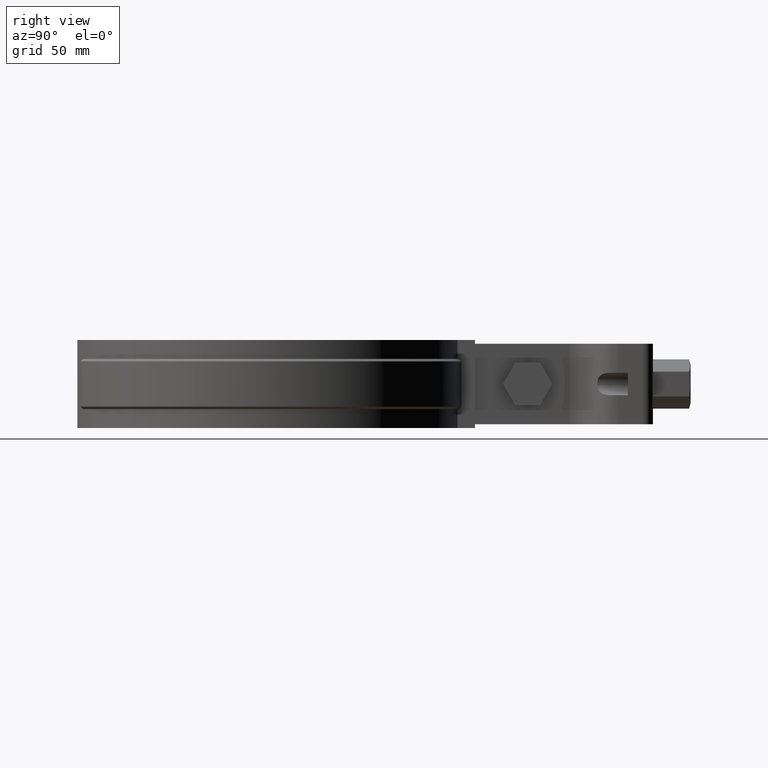
[diagram: clean part render]
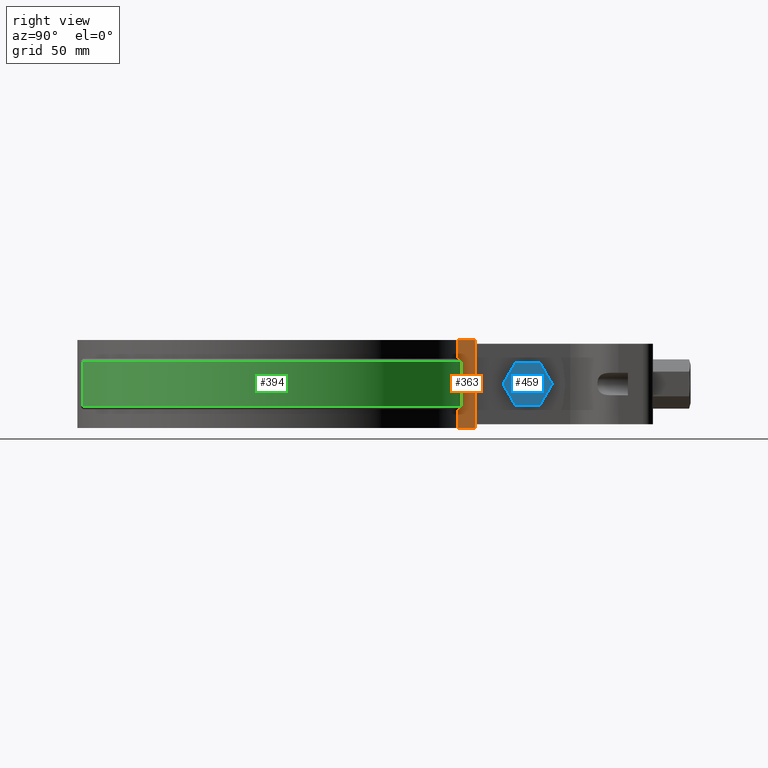
[diagram: same view with three faces highlighted in distinct colors, each labeled with its STEP entity id]
A machine part, right view with three faces highlighted in distinct colors.
Their STEP definitions:

[orange] entity #363 — the highlighted planar face has unit normal (1, -0, 0).
#363 = ADVANCED_FACE( '', ( #594 ), #595, .T. );
#594 = FACE_OUTER_BOUND( '', #1721, .T. );
#595 = PLANE( '', #1722 );
#1721 = EDGE_LOOP( '', ( #3563, #3564, #3565, #3566, #3567, #3568, #3569, #3570, #3571, #3572 ) );
#1722 = AXIS2_PLACEMENT_3D( '', #3573, #3574, #3575 );
#3563 = ORIENTED_EDGE( '', *, *, #5157, .F. );
#3564 = ORIENTED_EDGE( '', *, *, #5072, .T. );
#3565 = ORIENTED_EDGE( '', *, *, #5071, .T. );
#3566 = ORIENTED_EDGE( '', *, *, #5158, .F. );
#3567 = ORIENTED_EDGE( '', *, *, #5159, .T. );
#3568 = ORIENTED_EDGE( '', *, *, #5160, .T. );
#3569 = ORIENTED_EDGE( '', *, *, #5161, .F. );
#3570 = ORIENTED_EDGE( '', *, *, #5162, .F. );
#3571 = ORIENTED_EDGE( '', *, *, #5141, .F. );
#3572 = ORIENTED_EDGE( '', *, *, #5163, .T. );
#3573 = CARTESIAN_POINT( '', ( 8.39999999999999, 75.5343630409366, -33.5000000000000 ) );
#3574 = DIRECTION( '', ( 1.00000000000000, -6.67201336914157E-017, 0.000000000000000 ) );
#3575 = DIRECTION( '', ( 0.000000000000000, 0.000000000000000, 1.00000000000000 ) );
#5071 = EDGE_CURVE( '', #5634, #5636, #5638, .F. );
#5072 = EDGE_CURVE( '', #5639, #5634, #5640, .F. );
#5141 = EDGE_CURVE( '', #5766, #5761, #5768, .T. );
#5157 = EDGE_CURVE( '', #5639, #5794, #5795, .F. );
#5158 = EDGE_CURVE( '', #5796, #5636, #5797, .F. );
#5159 = EDGE_CURVE( '', #5796, #5798, #5799, .F. );
#5160 = EDGE_CURVE( '', #5798, #5800, #5801, .T. );
#5161 = EDGE_CURVE( '', #5802, #5800, #5803, .T. );
#5162 = EDGE_CURVE( '', #5761, #5802, #5804, .F. );
#5163 = EDGE_CURVE( '', #5766, #5794, #5805, .F. );
#5634 = VERTEX_POINT( '', #7398 );
#5636 = VERTEX_POINT( '', #7400 );
#5638 = LINE( '', #7402, #7403 );
#5639 = VERTEX_POINT( '', #7404 );
#5640 = B_SPLINE_CURVE_WITH_KNOTS( '', 3, ( #7405, #7406, #7407, #7408 ), .UNSPECIFIED., .F., .F., ( 4, 4 ), ( 707.205411715784, 707.206842214378 ), .UNSPECIFIED. );
#5761 = VERTEX_POINT( '', #8340 );
#5766 = VERTEX_POINT( '', #8345 );
#5768 = LINE( '', #8347, #8348 );
#5794 = VERTEX_POINT( '', #8448 );
#5795 = LINE( '', #8449, #8450 );
#5796 = VERTEX_POINT( '', #8451 );
#5797 = LINE( '', #8452, #8453 );
#5798 = VERTEX_POINT( '', #8454 );
#5799 = LINE( '', #8455, #8456 );
#5800 = VERTEX_POINT( '', #8457 );
#5801 = LINE( '', #8458, #8459 );
#5802 = VERTEX_POINT( '', #8460 );
#5803 = LINE( '', #8461, #8462 );
#5804 = LINE( '', #8463, #8464 );
#5805 = B_SPLINE_CURVE_WITH_KNOTS( '', 3, ( #8465, #8466, #8467, #8468 ), .UNSPECIFIED., .F., .F., ( 4, 4 ), ( 706.997502694601, 706.998921160348 ), .UNSPECIFIED. );
#7398 = CARTESIAN_POINT( '', ( 8.39999999999999, 76.0374249958532, -26.0000000000000 ) );
#7400 = CARTESIAN_POINT( '', ( 8.39999999999999, 75.5343630409365, -26.0000000000000 ) );
#7402 = CARTESIAN_POINT( '', ( 8.39999999999999, 75.5343630409366, -26.0000000000000 ) );
#7403 = VECTOR( '', #9507, 1000.00000000000 );
#7404 = CARTESIAN_POINT( '', ( 8.39999999999999, 77.0434293110061, -25.0000000000000 ) );
#7405 = CARTESIAN_POINT( '', ( 8.39999999999999, 76.0374249958168, -26.0000000000362 ) );
#7406 = CARTESIAN_POINT( '', ( 8.39999999999999, 76.3727728767412, -25.6666798779014 ) );
#7407 = CARTESIAN_POINT( '', ( 8.39999999999999, 76.7081074783135, -25.3333463730773 ) );
#7408 = CARTESIAN_POINT( '', ( 8.39999999999999, 77.0434293110018, -25.0000000000043 ) );
#8340 = CARTESIAN_POINT( '', ( 8.39999999999999, 75.5343630409366, -6.00000000000000 ) );
#8345 = CARTESIAN_POINT( '', ( 8.39999999999999, 76.0374249958532, -6.00000000000000 ) );
#8347 = CARTESIAN_POINT( '', ( 8.39999999999998, -59.5000000000000, -6.00000000000000 ) );
#8348 = VECTOR( '', #9567, 1000.00000000000 );
#8448 = CARTESIAN_POINT( '', ( 8.39999999999999, 77.0434293110061, -7.00000000000002 ) );
#8449 = CARTESIAN_POINT( '', ( 8.39999999999999, 77.0434293110062, -26.0000000000000 ) );
#8450 = VECTOR( '', #9592, 1000.00000000000 );
#8451 = CARTESIAN_POINT( '', ( 8.39999999999999, 75.5343630409365, -33.5000000000000 ) );
#8452 = CARTESIAN_POINT( '', ( 8.39999999999999, 75.5343630409365, -33.5000000000000 ) );
#8453 = VECTOR( '', #9593, 1000.00000000000 );
#8454 = CARTESIAN_POINT( '', ( 8.39999999999999, 82.5000000000000, -33.5000000000000 ) );
#8455 = CARTESIAN_POINT( '', ( 8.39999999999999, 75.5343630409366, -33.5000000000000 ) );
#8456 = VECTOR( '', #9594, 1000.00000000000 );
#8457 = CARTESIAN_POINT( '', ( 8.39999999999999, 82.5000000000000, 1.50000000000000 ) );
#8458 = CARTESIAN_POINT( '', ( 8.39999999999999, 82.5000000000000, -33.5000000000000 ) );
#8459 = VECTOR( '', #9595, 1000.00000000000 );
#8460 = CARTESIAN_POINT( '', ( 8.39999999999999, 75.5343630409365, 1.50000000000000 ) );
#8461 = CARTESIAN_POINT( '', ( 8.39999999999998, -5.60449123007891E-016, 1.50000000000000 ) );
#8462 = VECTOR( '', #9596, 1000.00000000000 );
#8463 = CARTESIAN_POINT( '', ( 8.39999999999999, 75.5343630409365, -33.5000000000000 ) );
#8464 = VECTOR( '', #9597, 1000.00000000000 );
#8465 = CARTESIAN_POINT( '', ( 8.39999999999999, 77.0434293109788, -6.99999999997280 ) );
#8466 = CARTESIAN_POINT( '', ( 8.39999999999999, 76.7081074965679, -6.66665364506959 ) );
#8467 = CARTESIAN_POINT( '', ( 8.39999999999999, 76.3727728952687, -6.33332014051405 ) );
#8468 = CARTESIAN_POINT( '', ( 8.39999999999999, 76.0374249958888, -6.00000000003538 ) );
#9507 = DIRECTION( '', ( 6.67201336914157E-017, 1.00000000000000, 0.000000000000000 ) );
#9567 = DIRECTION( '', ( -6.67201336914157E-017, -1.00000000000000, 0.000000000000000 ) );
#9592 = DIRECTION( '', ( 0.000000000000000, 0.000000000000000, -1.00000000000000 ) );
#9593 = DIRECTION( '', ( 0.000000000000000, 0.000000000000000, -1.00000000000000 ) );
#9594 = DIRECTION( '', ( -6.67201336914157E-017, -1.00000000000000, 0.000000000000000 ) );
#9595 = DIRECTION( '', ( 0.000000000000000, 0.000000000000000, 1.00000000000000 ) );
#9596 = DIRECTION( '', ( 6.67201336914157E-017, 1.00000000000000, 0.000000000000000 ) );
#9597 = DIRECTION( '', ( 0.000000000000000, 0.000000000000000, -1.00000000000000 ) );

[blue] entity #459 — the highlighted planar face has unit normal (-1, -0, 0).
#459 = ADVANCED_FACE( '', ( #805 ), #806, .F. );
#805 = FACE_OUTER_BOUND( '', #1932, .T. );
#806 = PLANE( '', #1933 );
#1932 = EDGE_LOOP( '', ( #4760, #4761, #4762, #4763, #4764, #4765 ) );
#1933 = AXIS2_PLACEMENT_3D( '', #4766, #4767, #4768 );
#4760 = ORIENTED_EDGE( '', *, *, #5402, .T. );
#4761 = ORIENTED_EDGE( '', *, *, #5396, .T. );
#4762 = ORIENTED_EDGE( '', *, *, #5399, .T. );
#4763 = ORIENTED_EDGE( '', *, *, #5403, .T. );
#4764 = ORIENTED_EDGE( '', *, *, #5400, .T. );
#4765 = ORIENTED_EDGE( '', *, *, #5393, .T. );
#4766 = CARTESIAN_POINT( '', ( 13.4999999999983, 88.7149488431168, -24.4999999999989 ) );
#4767 = DIRECTION( '', ( -1.00000000000000, -6.02334540269725E-017, 3.23117426778566E-033 ) );
#4768 = DIRECTION( '', ( -6.02334540269725E-017, 1.00000000000000, 0.000000000000000 ) );
#5393 = EDGE_CURVE( '', #6178, #6176, #6179, .T. );
#5396 = EDGE_CURVE( '', #6183, #6181, #6184, .T. );
#5399 = EDGE_CURVE( '', #6181, #6186, #6188, .T. );
#5400 = EDGE_CURVE( '', #6189, #6178, #6190, .T. );
#5402 = EDGE_CURVE( '', #6176, #6183, #6192, .T. );
#5403 = EDGE_CURVE( '', #6186, #6189, #6193, .T. );
#6176 = VERTEX_POINT( '', #9193 );
#6178 = VERTEX_POINT( '', #9196 );
#6179 = LINE( '', #9197, #9198 );
#6181 = VERTEX_POINT( '', #9201 );
#6183 = VERTEX_POINT( '', #9204 );
#6184 = LINE( '', #9205, #9206 );
#6186 = VERTEX_POINT( '', #9209 );
#6188 = LINE( '', #9212, #9213 );
#6189 = VERTEX_POINT( '', #9214 );
#6190 = LINE( '', #9215, #9216 );
#6192 = LINE( '', #9219, #9220 );
#6193 = LINE( '', #9221, #9222 );
#9193 = CARTESIAN_POINT( '', ( 13.4999999999983, 98.5299034193368, -24.4999999999990 ) );
#9196 = CARTESIAN_POINT( '', ( 13.4999999999983, 93.6224261312268, -16.0000000000000 ) );
#9197 = CARTESIAN_POINT( '', ( 13.4999999999983, 93.6224261312268, -16.0000000000000 ) );
#9198 = VECTOR( '', #9964, 1000.00000000000 );
#9201 = CARTESIAN_POINT( '', ( 13.4999999999983, 113.252335283667, -16.0000000000000 ) );
#9204 = CARTESIAN_POINT( '', ( 13.4999999999983, 108.344857995557, -24.4999999999990 ) );
#9205 = CARTESIAN_POINT( '', ( 13.4999999999983, 108.344857995557, -24.4999999999990 ) );
#9206 = VECTOR( '', #9967, 1000.00000000000 );
#9209 = CARTESIAN_POINT( '', ( 13.4999999999983, 108.344857995557, -7.50000000000103 ) );
#9212 = CARTESIAN_POINT( '', ( 13.4999999999983, 113.252335283667, -16.0000000000000 ) );
#9213 = VECTOR( '', #9970, 1000.00000000000 );
#9214 = CARTESIAN_POINT( '', ( 13.4999999999983, 98.5299034193368, -7.50000000000103 ) );
#9215 = CARTESIAN_POINT( '', ( 13.4999999999983, 98.5299034193368, -7.50000000000103 ) );
#9216 = VECTOR( '', #9971, 1000.00000000000 );
#9219 = CARTESIAN_POINT( '', ( 13.4999999999983, 98.5299034193368, -24.4999999999990 ) );
#9220 = VECTOR( '', #9973, 1000.00000000000 );
#9221 = CARTESIAN_POINT( '', ( 13.4999999999983, 108.344857995557, -7.50000000000103 ) );
#9222 = VECTOR( '', #9974, 1000.00000000000 );
#9964 = DIRECTION( '', ( -3.01167270134807E-017, 0.499999999999908, -0.866025403784492 ) );
#9967 = DIRECTION( '', ( -3.01167270134807E-017, 0.499999999999908, 0.866025403784492 ) );
#9970 = DIRECTION( '', ( 3.01167270134807E-017, -0.499999999999908, 0.866025403784492 ) );
#9971 = DIRECTION( '', ( 3.01167270134807E-017, -0.499999999999908, -0.866025403784492 ) );
#9973 = DIRECTION( '', ( -6.02334540269725E-017, 1.00000000000000, -3.33066907387628E-016 ) );
#9974 = DIRECTION( '', ( 6.02334540269725E-017, -1.00000000000000, -1.89911354914636E-065 ) );

[green] entity #394 — the highlighted cylindrical surface (partial cylindrical patch) has radius 77.5 mm, axis along (0, 0, 1).
#394 = ADVANCED_FACE( '', ( #657 ), #658, .T. );
#657 = FACE_OUTER_BOUND( '', #1784, .T. );
#658 = CYLINDRICAL_SURFACE( '', #1785, 77.5000000000000 );
#1784 = EDGE_LOOP( '', ( #4220, #4221, #4222, #4223 ) );
#1785 = AXIS2_PLACEMENT_3D( '', #4224, #4225, #4226 );
#4220 = ORIENTED_EDGE( '', *, *, #5157, .T. );
#4221 = ORIENTED_EDGE( '', *, *, #5183, .T. );
#4222 = ORIENTED_EDGE( '', *, *, #5224, .F. );
#4223 = ORIENTED_EDGE( '', *, *, #5073, .T. );
#4224 = CARTESIAN_POINT( '', ( 0.000000000000000, 0.000000000000000, -26.0000000000000 ) );
#4225 = DIRECTION( '', ( 0.000000000000000, 0.000000000000000, 1.00000000000000 ) );
#4226 = DIRECTION( '', ( -0.306098023515345, 0.952000000000000, 0.000000000000000 ) );
#5073 = EDGE_CURVE( '', #5625, #5639, #5641, .T. );
#5157 = EDGE_CURVE( '', #5639, #5794, #5795, .F. );
#5183 = EDGE_CURVE( '', #5794, #5835, #5837, .T. );
#5224 = EDGE_CURVE( '', #5625, #5835, #5892, .T. );
#5625 = VERTEX_POINT( '', #7383 );
#5639 = VERTEX_POINT( '', #7404 );
#5641 = CIRCLE( '', #7409, 77.5000000000000 );
#5794 = VERTEX_POINT( '', #8448 );
#5795 = LINE( '', #8449, #8450 );
#5835 = VERTEX_POINT( '', #8512 );
#5837 = CIRCLE( '', #8515, 77.5000000000000 );
#5892 = LINE( '', #8645, #8646 );
#7383 = CARTESIAN_POINT( '', ( 23.7225968224392, -73.7800000000000, -25.0000000000000 ) );
#7404 = CARTESIAN_POINT( '', ( 8.39999999999999, 77.0434293110061, -25.0000000000000 ) );
#7409 = AXIS2_PLACEMENT_3D( '', #9508, #9509, #9510 );
#8448 = CARTESIAN_POINT( '', ( 8.39999999999999, 77.0434293110061, -7.00000000000002 ) );
#8449 = CARTESIAN_POINT( '', ( 8.39999999999999, 77.0434293110062, -26.0000000000000 ) );
#8450 = VECTOR( '', #9592, 1000.00000000000 );
#8512 = CARTESIAN_POINT( '', ( 23.7225968224392, -73.7800000000000, -7.00000000000001 ) );
#8515 = AXIS2_PLACEMENT_3D( '', #9633, #9634, #9635 );
#8645 = CARTESIAN_POINT( '', ( 23.7225968224392, -73.7800000000000, -26.0000000000000 ) );
#8646 = VECTOR( '', #9701, 1000.00000000000 );
#9508 = CARTESIAN_POINT( '', ( 0.000000000000000, 0.000000000000000, -25.0000000000000 ) );
#9509 = DIRECTION( '', ( 0.000000000000000, 0.000000000000000, 1.00000000000000 ) );
#9510 = DIRECTION( '', ( 1.00000000000000, 0.000000000000000, 0.000000000000000 ) );
#9592 = DIRECTION( '', ( 0.000000000000000, 0.000000000000000, -1.00000000000000 ) );
#9633 = CARTESIAN_POINT( '', ( 0.000000000000000, 0.000000000000000, -7.00000000000002 ) );
#9634 = DIRECTION( '', ( 0.000000000000000, 0.000000000000000, -1.00000000000000 ) );
#9635 = DIRECTION( '', ( -1.00000000000000, 0.000000000000000, 0.000000000000000 ) );
#9701 = DIRECTION( '', ( 0.000000000000000, 0.000000000000000, 1.00000000000000 ) );